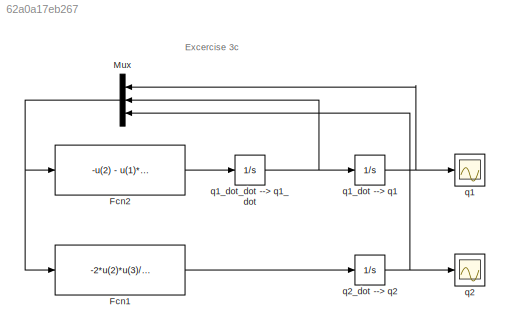
MODEL slx_62a0a17eb267
KIND model
BLOCK [Fcn] Fcn1
  Expr = -2*u(2)*u(3)/(1 + u(3)^2)
BLOCK [Fcn] Fcn2
  Expr = -u(2) - u(1)*u(3)
BLOCK [Mux] Mux
  DisplayOption = bar
  Inputs = 3
  Ports = [3, 1]
BLOCK [Scope] q1
  DataFormat = StructureWithTime
  Floating = off
  NumInputPorts = 1
  Ports = [1]
  SampleTime = 0
  SaveName = ScopeData1
  ShowLegends = off
BLOCK [Integrator] q1_dot --> q1
  InitialCondition = q_0
  Ports = [1, 1]
BLOCK [Integrator] q1_dot_dot --> q1_dot
  InitialCondition = q_dot_0
  Ports = [1, 1]
BLOCK [Scope] q2
  DataFormat = StructureWithTime
  Floating = off
  NumInputPorts = 1
  Ports = [1]
  SampleTime = 0
  ShowLegends = off
BLOCK [Integrator] q2_dot --> q2
  InitialCondition = q_0
  Ports = [1, 1]
ANNOTATION (root): Excercise 3c
LINE Fcn1:1 -> q2_dot --> q2:1
LINE Fcn2:1 -> q1_dot_dot --> q1_dot:1
NET Mux:1 -> Fcn1:1, Fcn2:1
NET q1_dot --> q1:1 -> Mux:1, q1:1
NET q1_dot_dot --> q1_dot:1 -> Mux:2, q1_dot --> q1:1
NET q2_dot --> q2:1 -> Mux:3, q2:1
note: NET lines group one-source signal fan-out (src -> all destinations, sorted); 1:1 wires keep LINE
